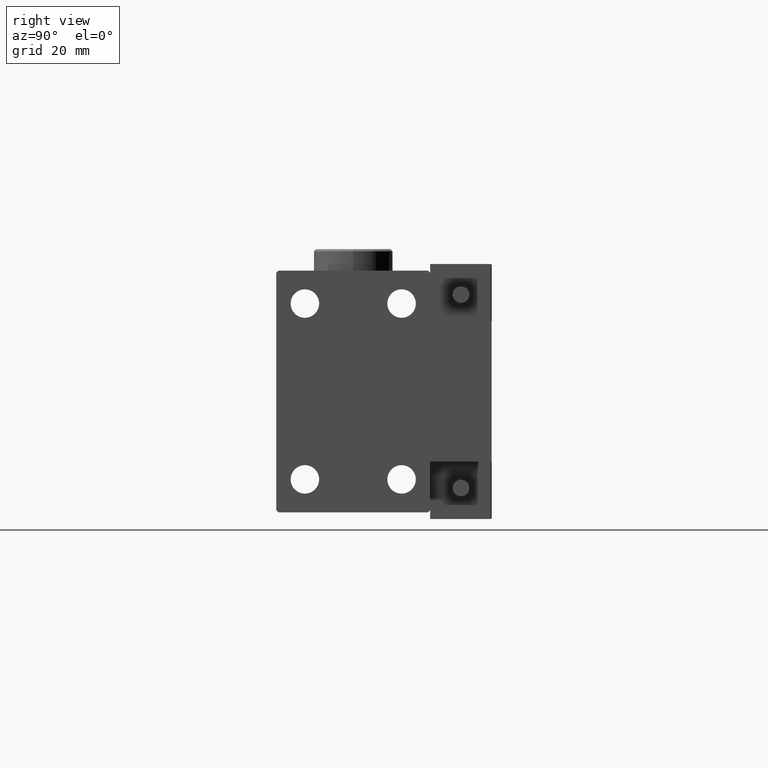
[diagram: clean part render]
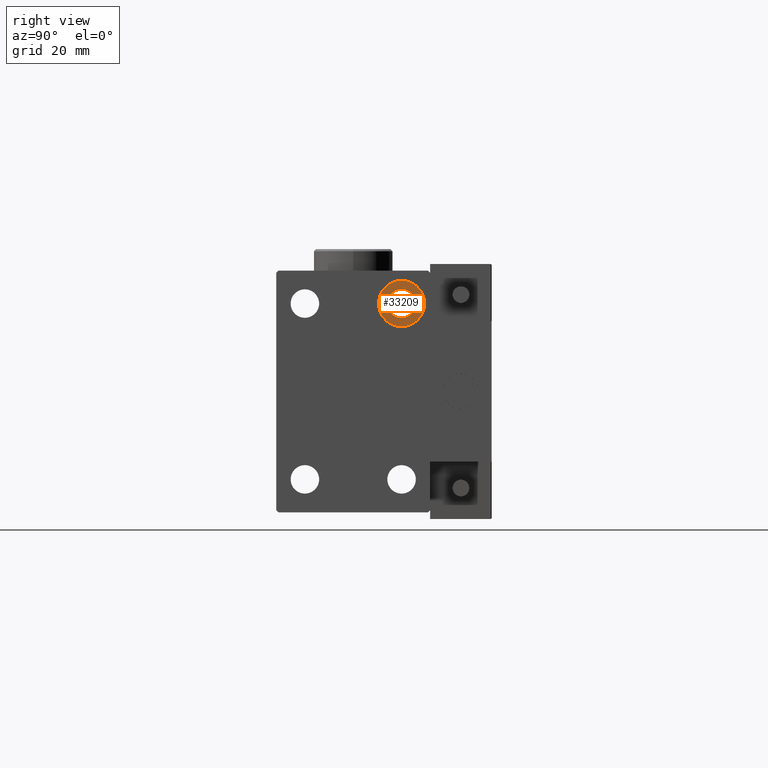
[diagram: same view with one face highlighted and labeled with its STEP entity id]
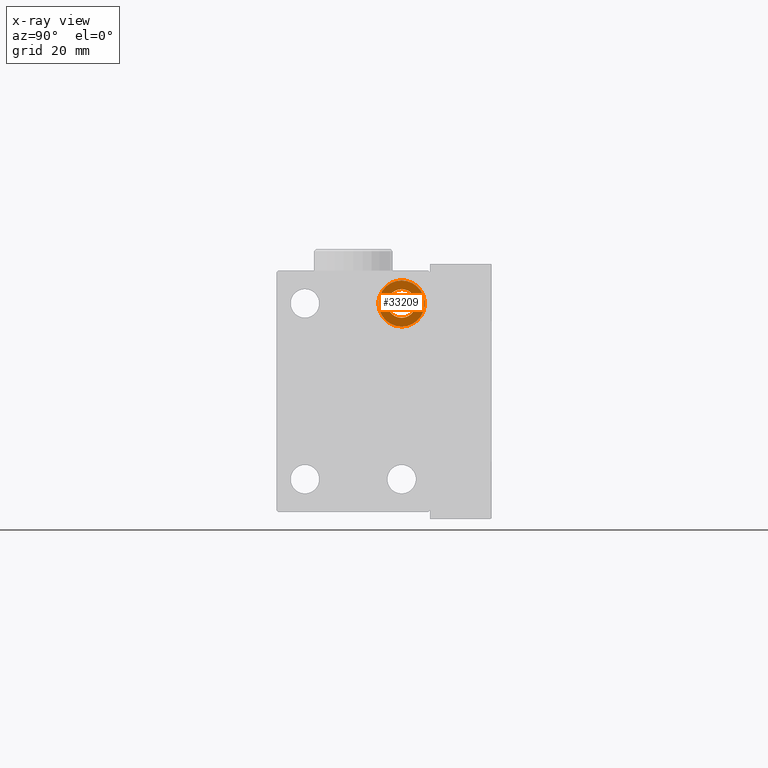
[diagram: x-ray of the same camera — body ghosted, the highlighted face saturated]
A machine part, right view. The second image highlights one B-rep face of the part: STEP entity #33209.
The next image is the same camera in x-ray: the body ghosted, the highlighted face saturated — about 0% of this face is hidden behind the body in this view.
In plain terms, the highlighted planar face has unit normal (1, 0, 0).
Its self-contained STEP definition (entity closure, byte-faithful):
#1204 = DIRECTION ( 'NONE',  ( -1.000000000000000000, -0.000000000000000000, -0.000000000000000000 ) ) ;
#2243 = CARTESIAN_POINT ( 'NONE',  ( 68.99999999999998579, 11.00000000000000355, 20.00000000000000000 ) ) ;
#2353 = FACE_BOUND ( 'NONE', #49667, .T. ) ;
#2736 = AXIS2_PLACEMENT_3D ( 'NONE', #39566, #47396, #7753 ) ;
#4219 = DIRECTION ( 'NONE',  ( 0.000000000000000000, 0.000000000000000000, -1.000000000000000000 ) ) ;
#4541 = CIRCLE ( 'NONE', #20429, 5.250000000000000888 ) ;
#7753 = DIRECTION ( 'NONE',  ( 0.000000000000000000, 0.000000000000000000, 1.000000000000000000 ) ) ;
#8199 = EDGE_CURVE ( 'NONE', #50664, #31208, #33499, .T. ) ;
#9300 = EDGE_CURVE ( 'NONE', #21310, #50184, #25246, .T. ) ;
#11957 = ORIENTED_EDGE ( 'NONE', *, *, #21566, .T. ) ;
#14196 = ORIENTED_EDGE ( 'NONE', *, *, #8199, .T. ) ;
#14407 = ORIENTED_EDGE ( 'NONE', *, *, #39671, .F. ) ;
#15182 = AXIS2_PLACEMENT_3D ( 'NONE', #2243, #1204, #49701 ) ;
#16248 = CARTESIAN_POINT ( 'NONE',  ( 68.99999999999998579, 11.00000000000000355, 20.00000000000000000 ) ) ;
#17764 = CARTESIAN_POINT ( 'NONE',  ( 68.99999999999998579, 0.000000000000000000, 0.000000000000000000 ) ) ;
#19338 = CARTESIAN_POINT ( 'NONE',  ( 68.99999999999998579, 11.00000000000000355, 23.25000000000000000 ) ) ;
#20429 = AXIS2_PLACEMENT_3D ( 'NONE', #37660, #36619, #21252 ) ;
#20498 = CARTESIAN_POINT ( 'NONE',  ( 68.99999999999998579, 11.00000000000000355, 16.75000000000000000 ) ) ;
#21252 = DIRECTION ( 'NONE',  ( 0.000000000000000000, 0.000000000000000000, 1.000000000000000000 ) ) ;
#21310 = VERTEX_POINT ( 'NONE', #42343 ) ;
#21566 = EDGE_CURVE ( 'NONE', #31208, #50664, #37177, .T. ) ;
#24601 = EDGE_LOOP ( 'NONE', ( #14407, #29599 ) ) ;
#25246 = CIRCLE ( 'NONE', #2736, 5.250000000000000888 ) ;
#29450 = CARTESIAN_POINT ( 'NONE',  ( 68.99999999999998579, 11.00000000000000355, 14.75000000000000000 ) ) ;
#29599 = ORIENTED_EDGE ( 'NONE', *, *, #9300, .F. ) ;
#30523 = PLANE ( 'NONE',  #34317 ) ;
#31208 = VERTEX_POINT ( 'NONE', #20498 ) ;
#32929 = DIRECTION ( 'NONE',  ( -1.000000000000000000, -0.000000000000000000, -0.000000000000000000 ) ) ;
#33209 = ADVANCED_FACE ( 'NONE', ( #38093, #2353 ), #30523, .T. ) ;
#33499 = CIRCLE ( 'NONE', #15182, 3.249999999999999556 ) ;
#34317 = AXIS2_PLACEMENT_3D ( 'NONE', #17764, #41714, #46428 ) ;
#36619 = DIRECTION ( 'NONE',  ( -1.000000000000000000, -0.000000000000000000, -0.000000000000000000 ) ) ;
#37177 = CIRCLE ( 'NONE', #43814, 3.249999999999999556 ) ;
#37660 = CARTESIAN_POINT ( 'NONE',  ( 68.99999999999998579, 11.00000000000000355, 20.00000000000000000 ) ) ;
#38093 = FACE_OUTER_BOUND ( 'NONE', #24601, .T. ) ;
#39566 = CARTESIAN_POINT ( 'NONE',  ( 68.99999999999998579, 11.00000000000000355, 20.00000000000000000 ) ) ;
#39671 = EDGE_CURVE ( 'NONE', #50184, #21310, #4541, .T. ) ;
#41714 = DIRECTION ( 'NONE',  ( 1.000000000000000000, 0.000000000000000000, -0.000000000000000000 ) ) ;
#42343 = CARTESIAN_POINT ( 'NONE',  ( 68.99999999999998579, 11.00000000000000355, 25.25000000000000000 ) ) ;
#43814 = AXIS2_PLACEMENT_3D ( 'NONE', #16248, #32929, #4219 ) ;
#46428 = DIRECTION ( 'NONE',  ( 0.000000000000000000, 0.000000000000000000, 1.000000000000000000 ) ) ;
#47396 = DIRECTION ( 'NONE',  ( -1.000000000000000000, -0.000000000000000000, -0.000000000000000000 ) ) ;
#49667 = EDGE_LOOP ( 'NONE', ( #14196, #11957 ) ) ;
#49701 = DIRECTION ( 'NONE',  ( 0.000000000000000000, 0.000000000000000000, -1.000000000000000000 ) ) ;
#50184 = VERTEX_POINT ( 'NONE', #29450 ) ;
#50664 = VERTEX_POINT ( 'NONE', #19338 ) ;